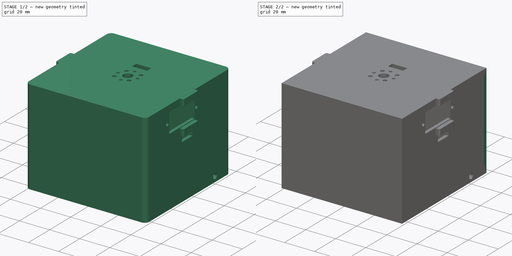
[diagram: build sequence overview — one tinted view per stage of 2, left to right]
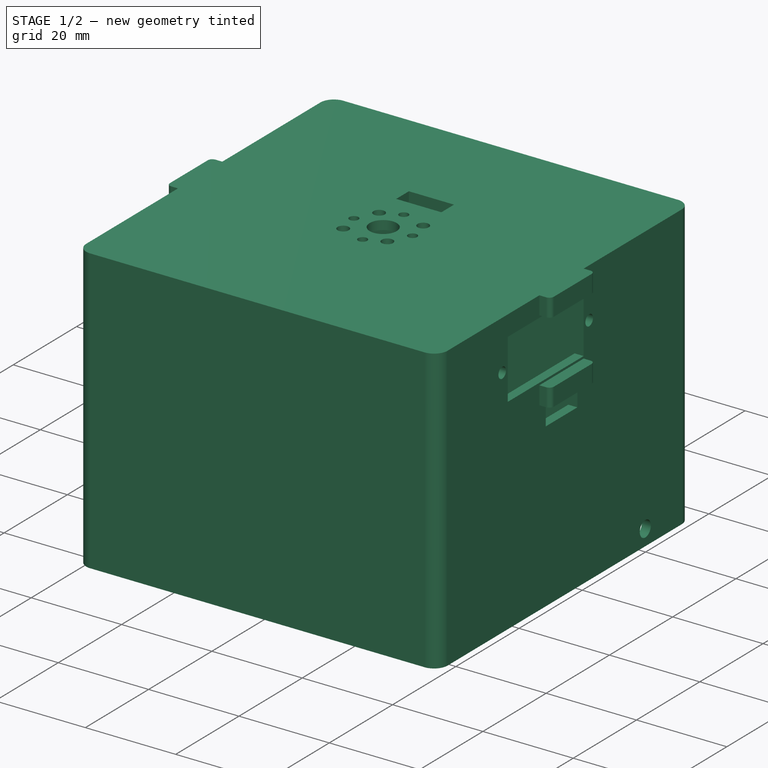
[diagram: stage 1 of 2 — iso view after this stage's code; geometry added in this stage tinted green]
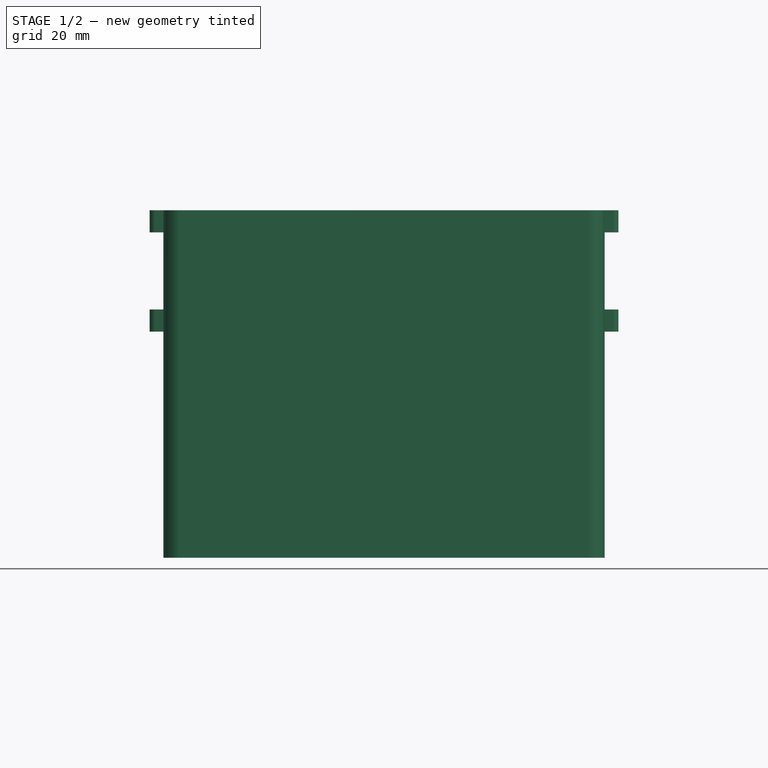
[diagram: stage 1 of 2 — front view after this stage's code; geometry added in this stage tinted green]
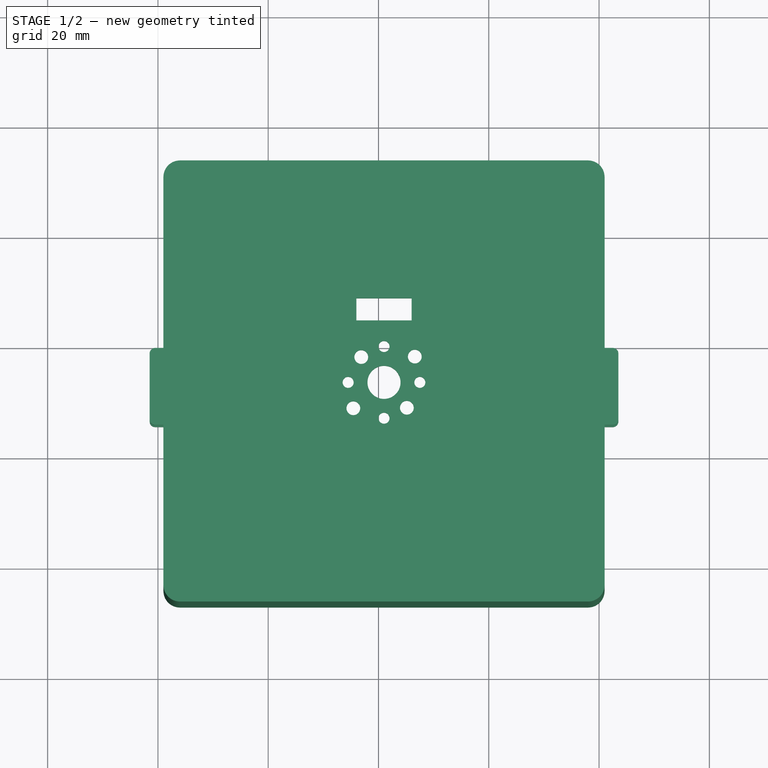
[diagram: stage 1 of 2 — top view after this stage's code; geometry added in this stage tinted green]
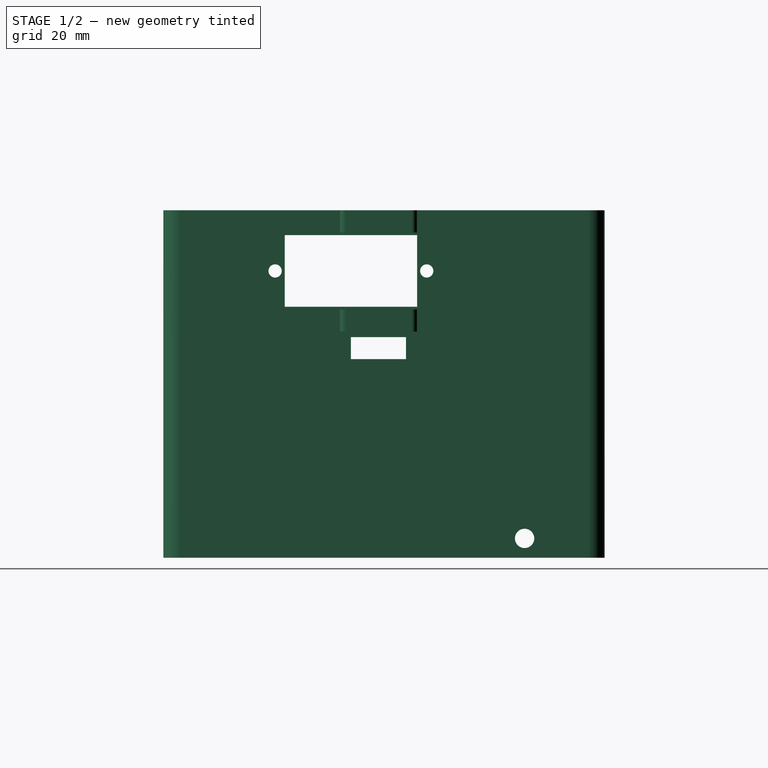
[diagram: stage 1 of 2 — right view after this stage's code; geometry added in this stage tinted green]
FCSTD DOCUMENT  (FreeCAD 0.16R6706 (Git))
Label: body_more_holes_nano_sensor_shield
License: All rights reserved
LicenseURL: http://en.wikipedia.org/wiki/All_rights_reserved
objects: Sketcher::SketchObject×3, Part::Feature×2, PartDesign::Pad×2, PartDesign::Pocket×1, PartDesign::Fillet×1
note: 12 computed .brp shape members not serialized (recipe doc carries the construction recipe); baked Part::Feature solids carry a one-line shape summary decoded from their .brp

FEATURE [Part::Feature] Pad001001  label="Pad002"
  shape: bbox 85 x 80 x 63 mm, 88 faces (baked)
FEATURE [Sketcher::SketchObject] Sketch002
  ExternalGeometry = -> [Pad001001]
  Placement = pos=(-279,0,0) rot=(0.57735,-0.57735,-0.57735;2.0944rad)
  Support = -> Pad001001 [Face53]
  sketch-geometry (4):
    g0: LineSegment StartX=-72.5 StartY=109.5 StartZ=0 EndX=-63.5 EndY=109.5 EndZ=0
    g1: LineSegment StartX=-63.5 StartY=109.5 StartZ=0 EndX=-63.5 EndY=96.5 EndZ=0
    g2: LineSegment StartX=-63.5 StartY=96.5 StartZ=0 EndX=-72.5 EndY=96.5 EndZ=0
    g3: LineSegment StartX=-72.5 StartY=96.5 StartZ=0 EndX=-72.5 EndY=109.5 EndZ=0
  constraints (12):
    c: Coincident(g0,g1)
    c: Coincident(g1,g2)
    c: Coincident(g2,g3)
    c: Coincident(g3,g0)
    c: Horizontal(g0)
    c: Horizontal(g2)
    c: Vertical(g1)
    c: Vertical(g3)
    c: DistanceY(g-4,g2) = 26.5
    c: DistanceY(g3,g3) = 13
    c: DistanceX(g0,g0) = 9
    c: DistanceX(g-3,g2) = 6
FEATURE [PartDesign::Pocket] Pocket
  Length = 5
  Sketch = -> Sketch002
  Type = 0
FEATURE [PartDesign::Fillet] Fillet  label="body_more_holes_nano_sensor_shield"
  Base = -> Pocket [Edge44,Edge42,Edge65,Edge67]
  Radius = 3
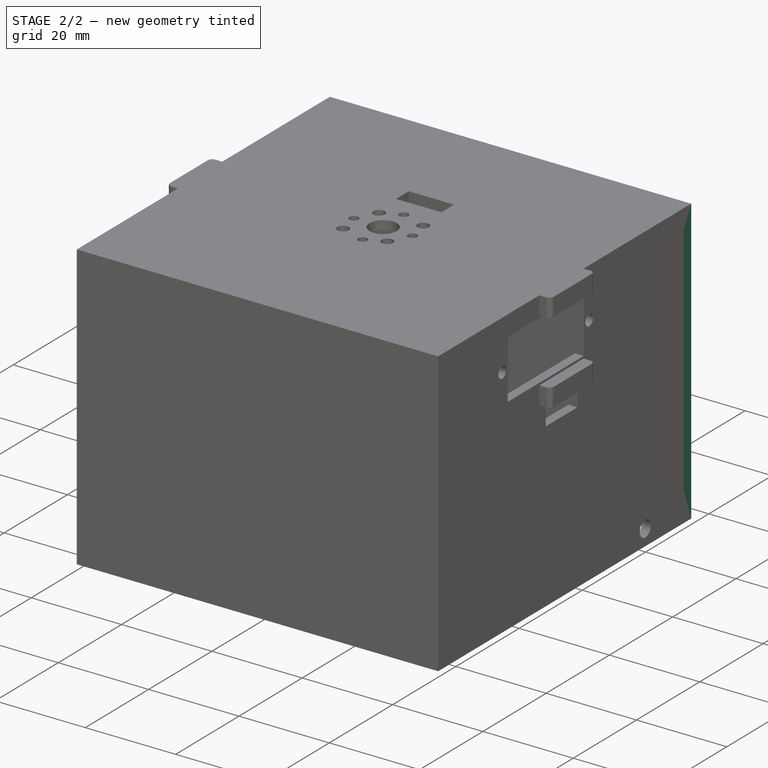
[diagram: stage 2 of 2 — iso view after this stage's code; geometry added in this stage tinted green]
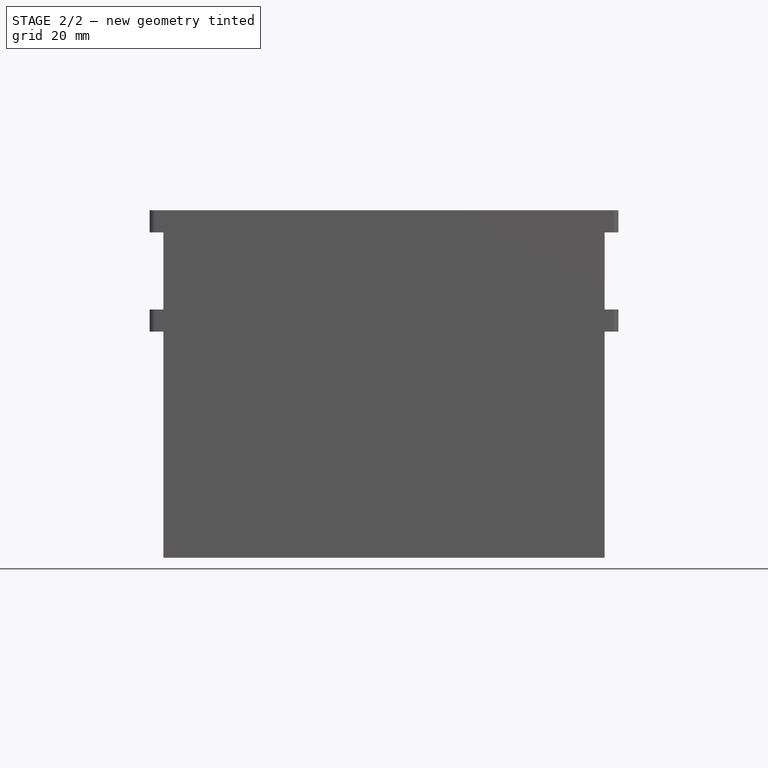
[diagram: stage 2 of 2 — front view after this stage's code; geometry added in this stage tinted green]
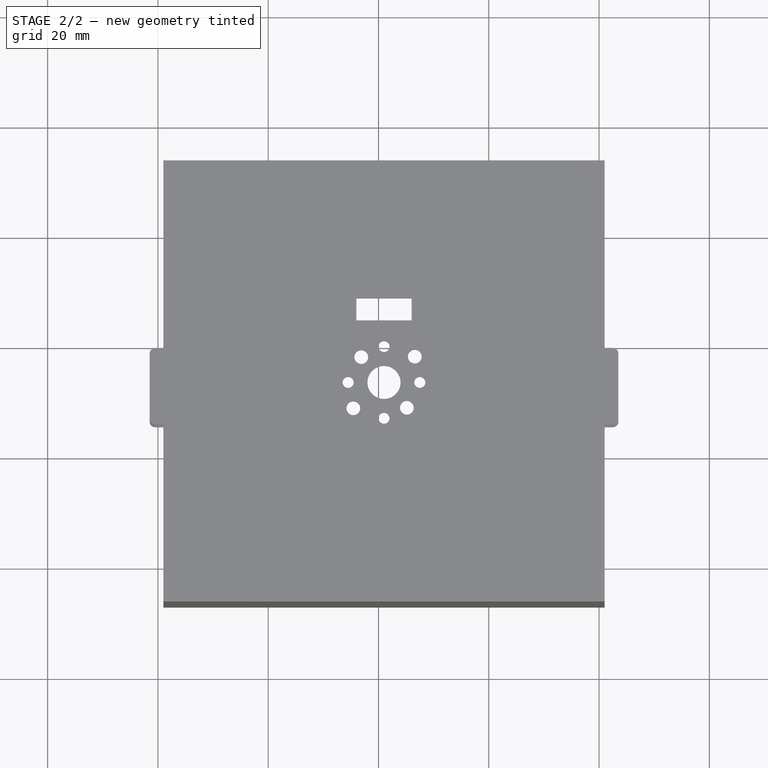
[diagram: stage 2 of 2 — top view after this stage's code; geometry added in this stage tinted green]
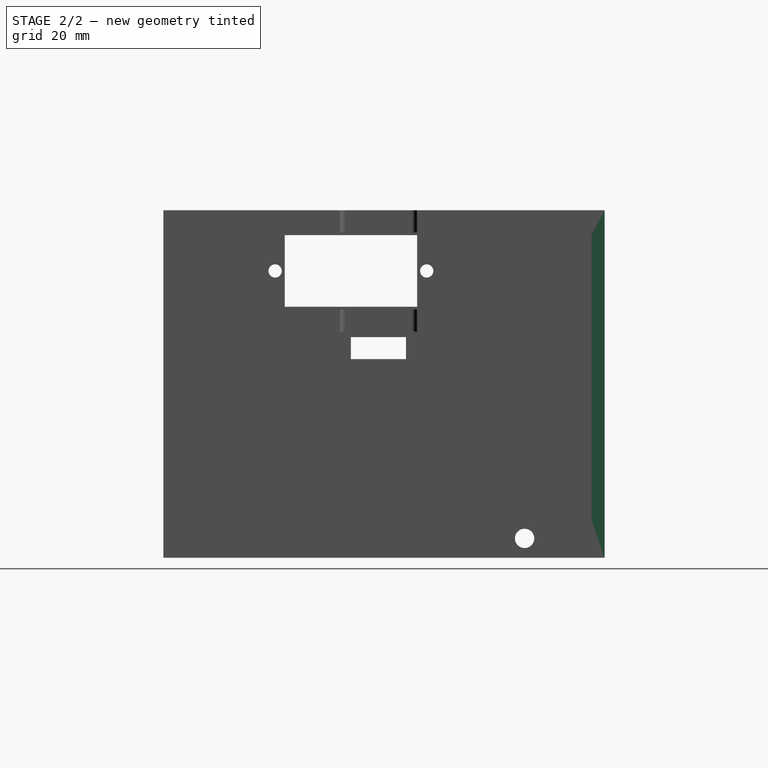
[diagram: stage 2 of 2 — right view after this stage's code; geometry added in this stage tinted green]
FEATURE [Part::Feature] Part__Feature  label="body_more_holes"
  shape: bbox 85 x 80 x 63 mm, 109 faces (baked)
FEATURE [Sketcher::SketchObject] Sketch
  Placement = pos=(-279,0,0) rot=(0.57735,-0.57735,-0.57735;2.0944rad)
  Support = -> Part__Feature [Face7]
  sketch-geometry (4):
    g0: LineSegment StartX=-90.4469 StartY=129.561 StartZ=0 EndX=-63.5127 EndY=129.561 EndZ=0
    g1: LineSegment StartX=-63.5127 StartY=129.561 StartZ=0 EndX=-63.5127 EndY=77.7175 EndZ=0
    g2: LineSegment StartX=-63.5127 StartY=77.7175 StartZ=0 EndX=-90.4469 EndY=77.7175 EndZ=0
    g3: LineSegment StartX=-90.4469 StartY=77.7175 StartZ=0 EndX=-90.4469 EndY=129.561 EndZ=0
  constraints (8):
    c: Coincident(g0,g1)
    c: Coincident(g1,g2)
    c: Coincident(g2,g3)
    c: Coincident(g3,g0)
    c: Horizontal(g0)
    c: Horizontal(g2)
    c: Vertical(g1)
    c: Vertical(g3)
FEATURE [PartDesign::Pad] Pad
  Length = 10
  Length2 = 100
  Reversed = true
  Sketch = -> Sketch
  Type = 3
  UpToFace = -> Part__Feature [Face76]
FEATURE [Sketcher::SketchObject] Sketch001
  Placement = pos=(-199,0,0) rot=(0.57735,0.57735,0.57735;2.0944rad)
  Support = -> Pad [Face10]
  sketch-geometry (4):
    g0: LineSegment StartX=64.3228 StartY=128.548 StartZ=0 EndX=90.6494 EndY=128.548 EndZ=0
    g1: LineSegment StartX=90.6494 StartY=128.548 StartZ=0 EndX=90.6494 EndY=76.7049 EndZ=0
    g2: LineSegment StartX=90.6494 StartY=76.7049 StartZ=0 EndX=64.3228 EndY=76.7049 EndZ=0
    g3: LineSegment StartX=64.3228 StartY=76.7049 StartZ=0 EndX=64.3228 EndY=128.548 EndZ=0
  constraints (8):
    c: Coincident(g0,g1)
    c: Coincident(g1,g2)
    c: Coincident(g2,g3)
    c: Coincident(g3,g0)
    c: Horizontal(g0)
    c: Horizontal(g2)
    c: Vertical(g1)
    c: Vertical(g3)
FEATURE [PartDesign::Pad] Pad001
  Length = 10
  Length2 = 100
  Reversed = true
  Sketch = -> Sketch001
  Type = 3
  UpToFace = -> Pad [Face70]
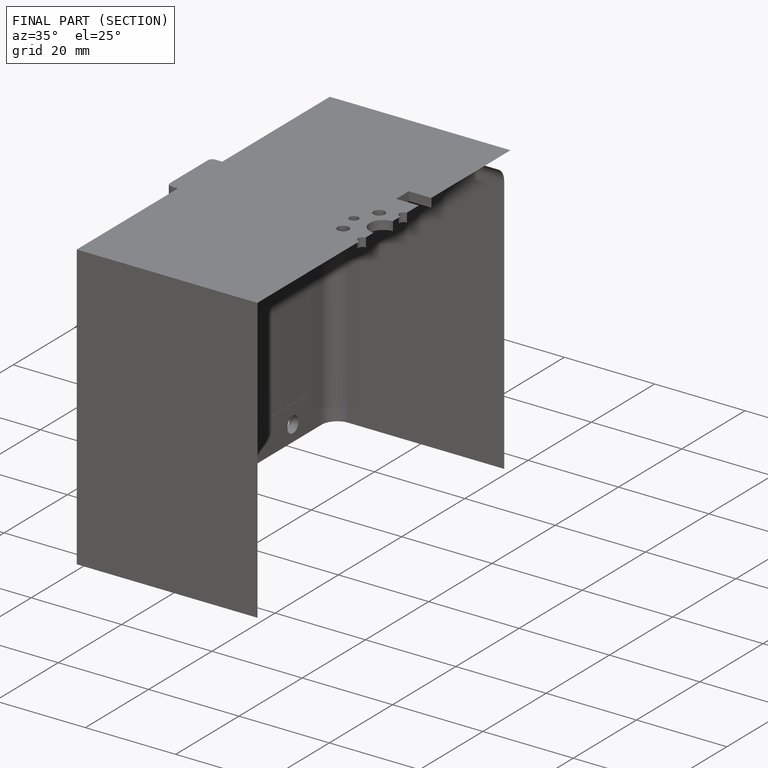
[diagram: finished part — half-section view (interior)]
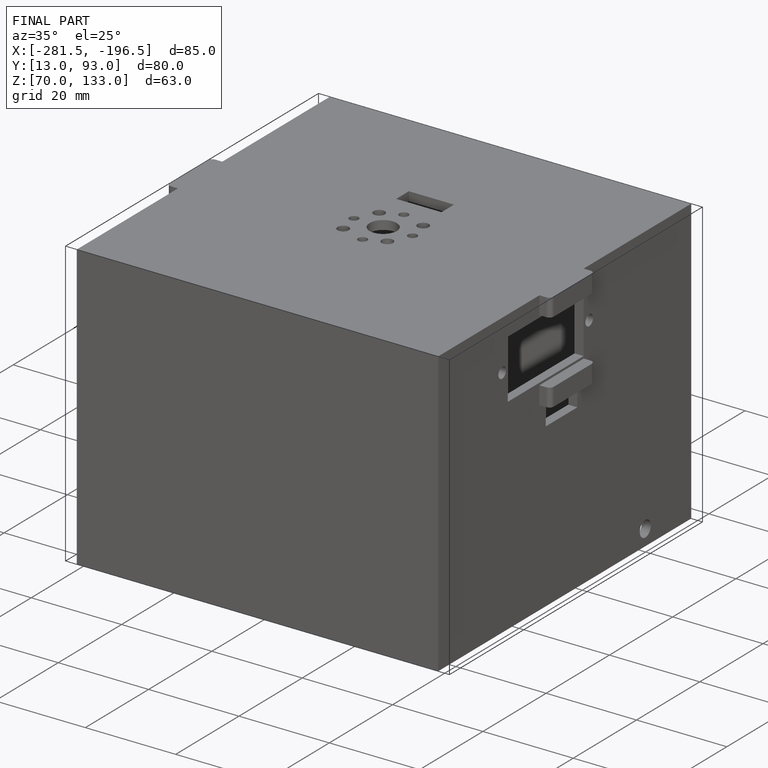
[diagram: finished part — iso view with bounding-box wireframe]
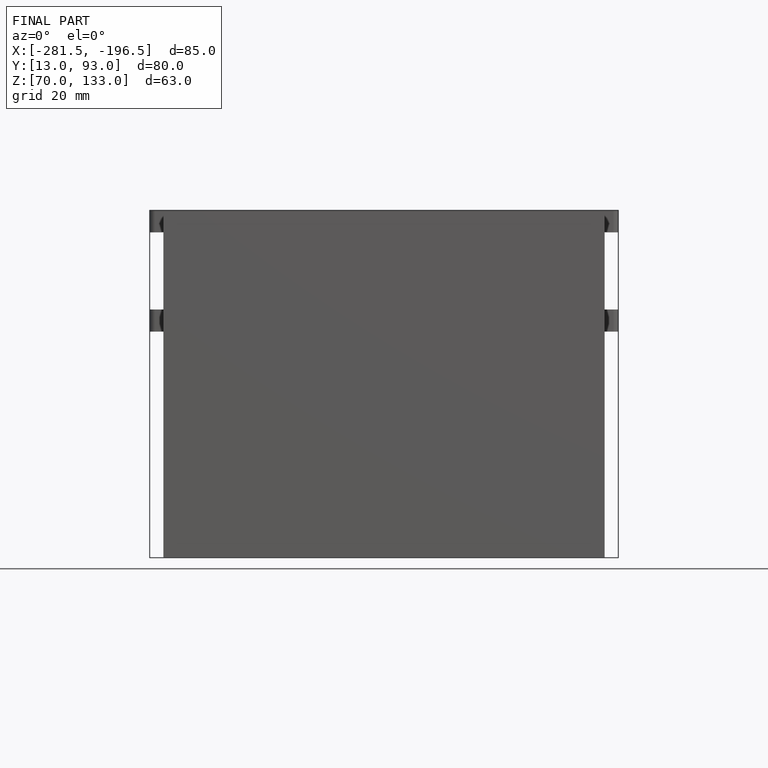
[diagram: finished part — front view with bounding-box wireframe]
